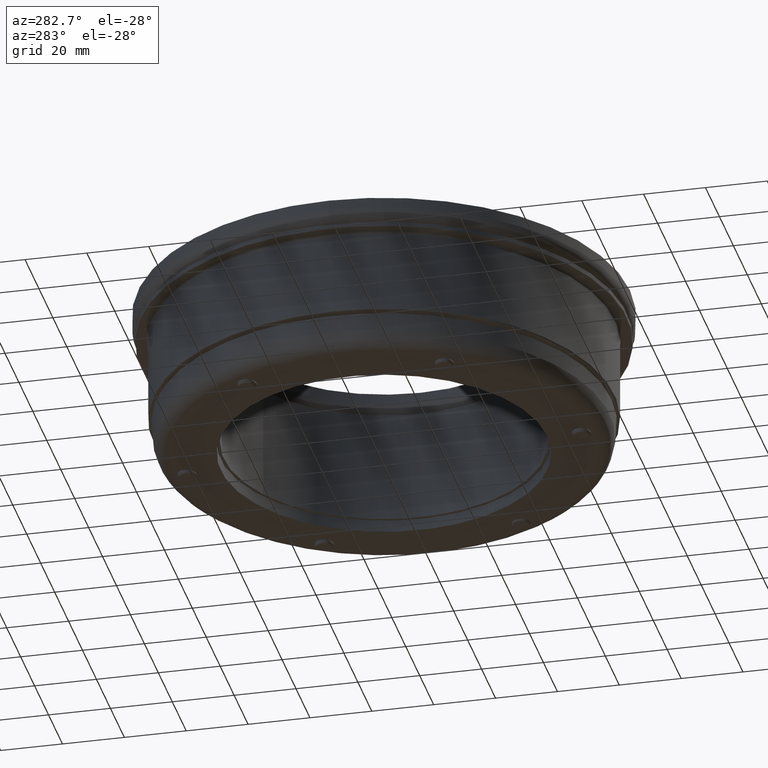
[diagram: clean part render]
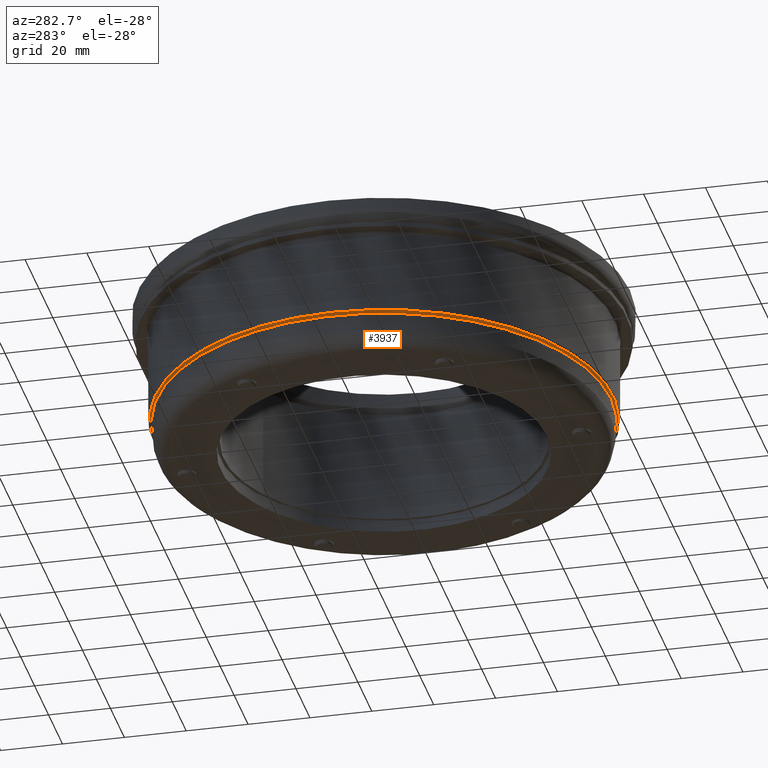
[diagram: same view with one face highlighted and labeled with its STEP entity id]
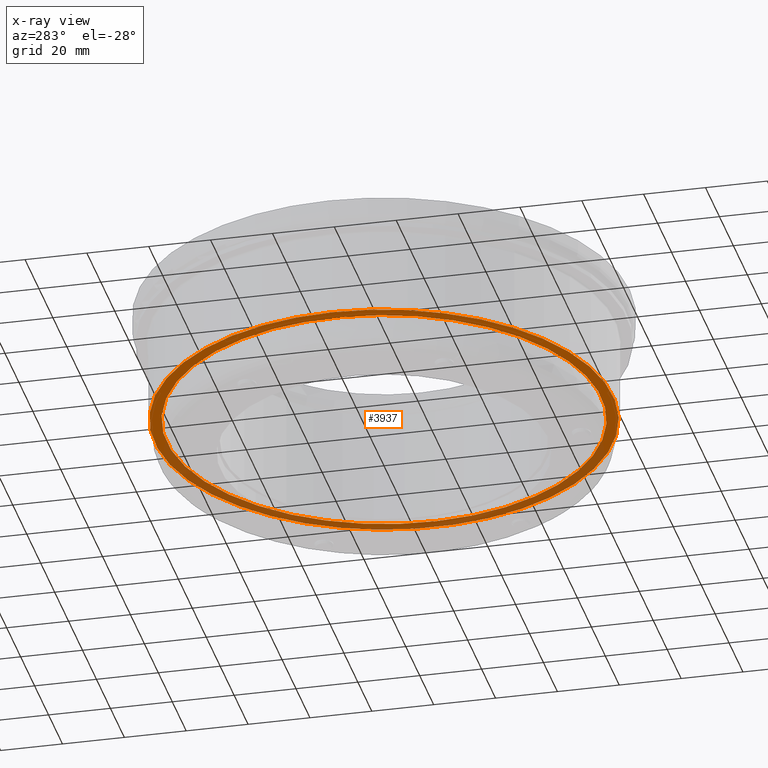
[diagram: x-ray of the same camera — body ghosted, the highlighted face saturated]
A machine part, auxiliary view. The second image highlights one B-rep face of the part: STEP entity #3937.
The next image is the same camera in x-ray: the body ghosted, the highlighted face saturated — about 36% of this face is hidden behind the body in this view.
In plain terms, the highlighted planar face has unit normal (-0, 0, 1).
Its self-contained STEP definition (entity closure, byte-faithful):
#119=FACE_BOUND('',#676,.T.);
#189=PLANE('',#4354);
#463=FACE_OUTER_BOUND('',#675,.T.);
#675=EDGE_LOOP('',(#2934));
#676=EDGE_LOOP('',(#2935,#2936));
#1569=CIRCLE('',#4352,70.1862441299916);
#1570=CIRCLE('',#4353,70.1862441299916);
#1571=CIRCLE('',#4355,74.);
#1783=VERTEX_POINT('',#5965);
#1784=VERTEX_POINT('',#5967);
#1785=VERTEX_POINT('',#5971);
#2227=EDGE_CURVE('',#1783,#1784,#1569,.T.);
#2228=EDGE_CURVE('',#1784,#1783,#1570,.T.);
#2229=EDGE_CURVE('',#1785,#1785,#1571,.T.);
#2934=ORIENTED_EDGE('',*,*,#2229,.F.);
#2935=ORIENTED_EDGE('',*,*,#2228,.F.);
#2936=ORIENTED_EDGE('',*,*,#2227,.F.);
#3937=ADVANCED_FACE('',(#463,#119),#189,.F.);
#4352=AXIS2_PLACEMENT_3D('',#5968,#4902,#4903);
#4353=AXIS2_PLACEMENT_3D('',#5969,#4904,#4905);
#4354=AXIS2_PLACEMENT_3D('',#5970,#4906,#4907);
#4355=AXIS2_PLACEMENT_3D('',#5972,#4908,#4909);
#4902=DIRECTION('center_axis',(0.,0.,-1.));
#4903=DIRECTION('ref_axis',(0.,1.,0.));
#4904=DIRECTION('center_axis',(0.,0.,-1.));
#4905=DIRECTION('ref_axis',(0.,1.,0.));
#4906=DIRECTION('center_axis',(0.,0.,1.));
#4907=DIRECTION('ref_axis',(1.,0.,0.));
#4908=DIRECTION('center_axis',(0.,0.,1.));
#4909=DIRECTION('ref_axis',(-1.,0.,0.));
#5965=CARTESIAN_POINT('',(-70.1862441299916,-8.59533592179689E-15,7.99999999999998));
#5967=CARTESIAN_POINT('',(-8.59533592179689E-15,-70.1862441299916,7.99999999999998));
#5968=CARTESIAN_POINT('Origin',(0.,0.,7.99999999999998));
#5969=CARTESIAN_POINT('Origin',(0.,0.,7.99999999999998));
#5970=CARTESIAN_POINT('Origin',(0.,71.7,7.99999999999998));
#5971=CARTESIAN_POINT('',(74.,9.617497826003E-15,7.99999999999998));
#5972=CARTESIAN_POINT('Origin',(-5.55111512312578E-16,5.55111512312578E-16,
7.99999999999998));